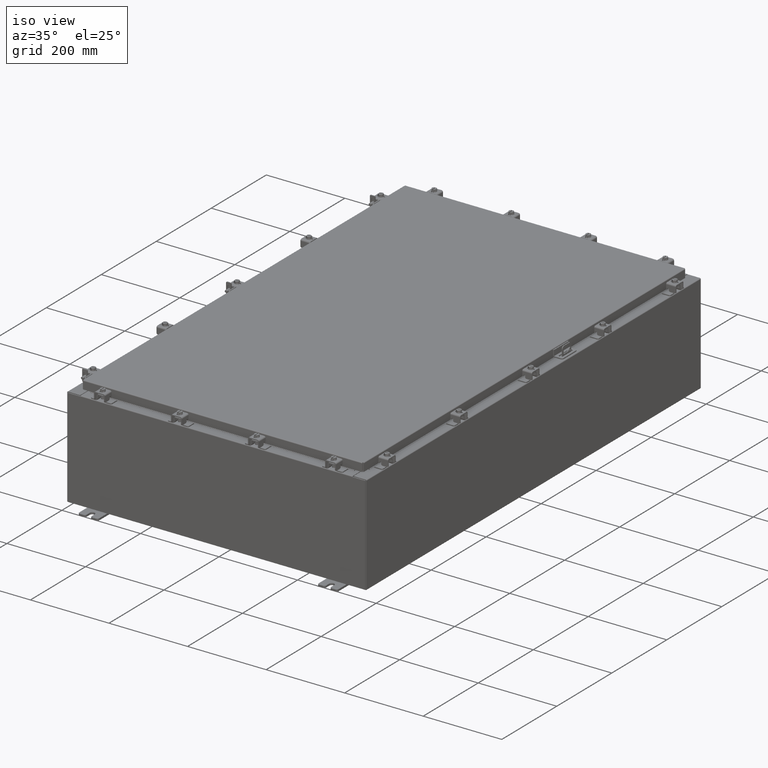
[diagram: clean part render]
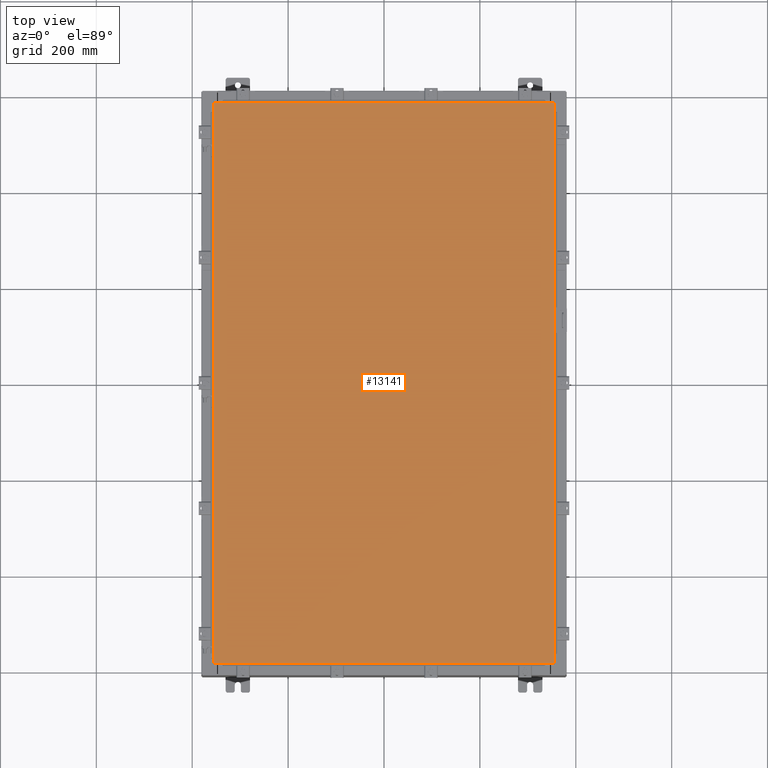
[diagram: tour spotlight — one face highlighted and labeled with its STEP entity id]
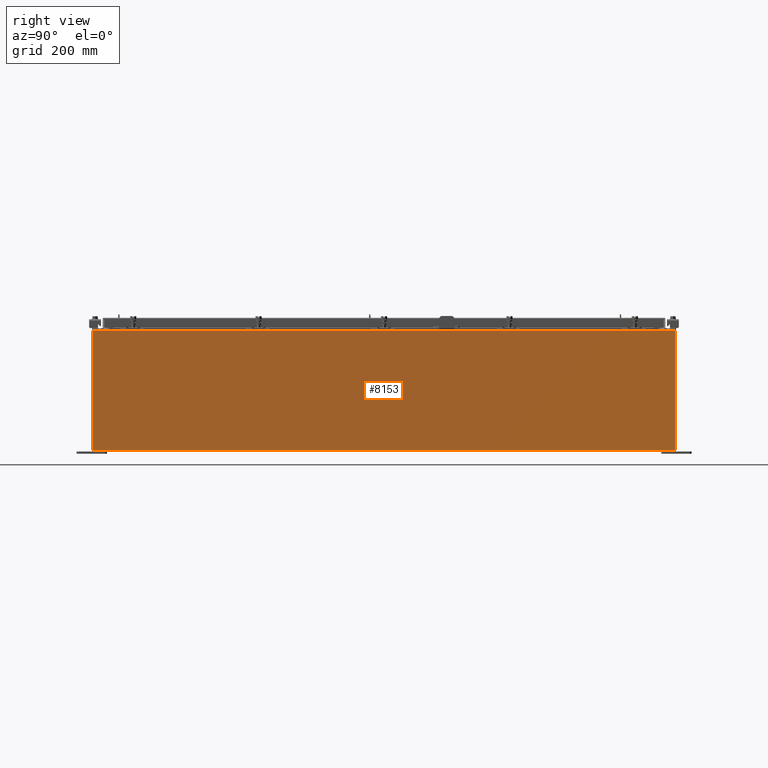
[diagram: tour spotlight — one face highlighted and labeled with its STEP entity id]
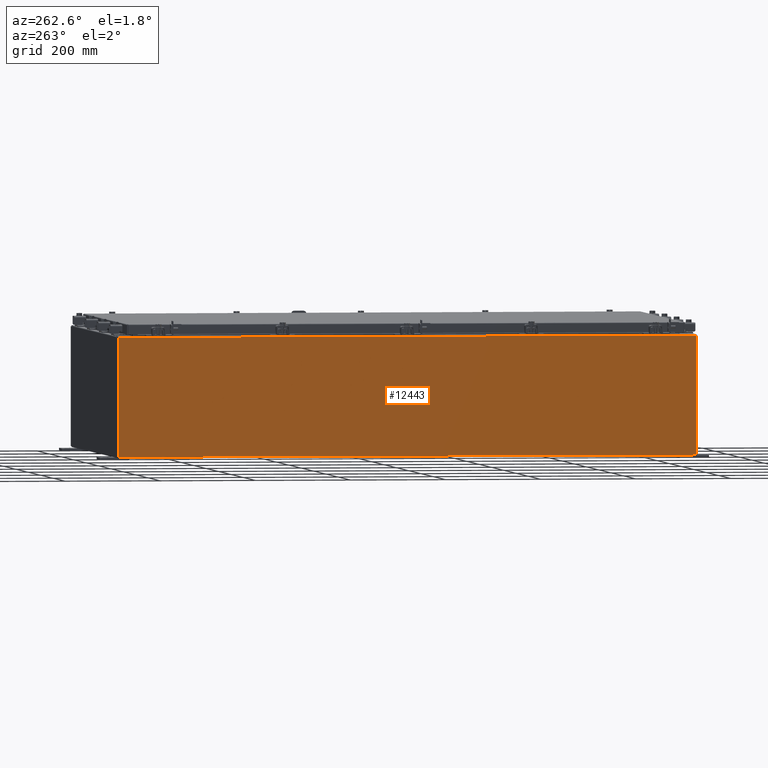
[diagram: tour spotlight — one face highlighted and labeled with its STEP entity id]
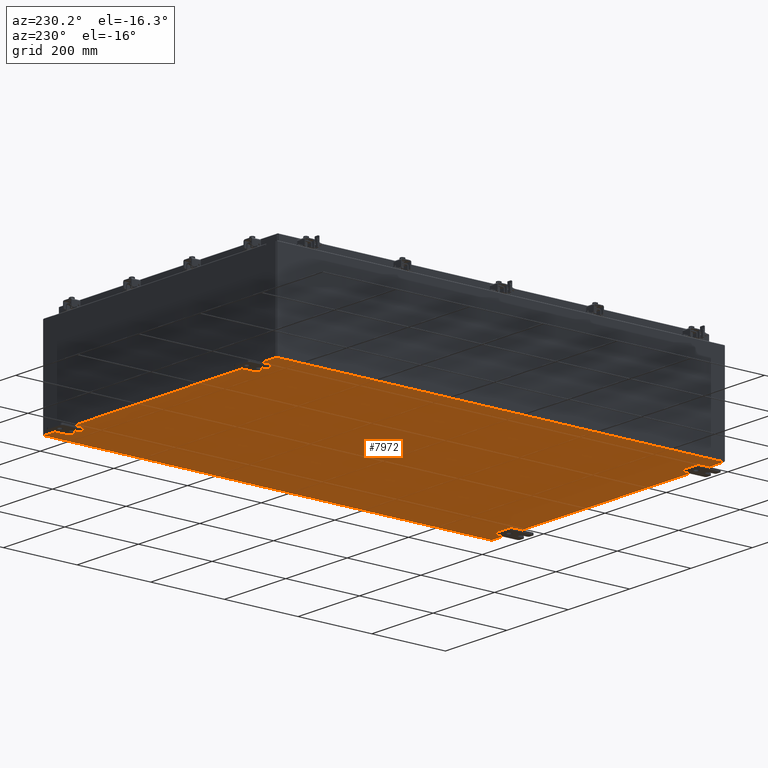
[diagram: tour spotlight — one face highlighted and labeled with its STEP entity id]
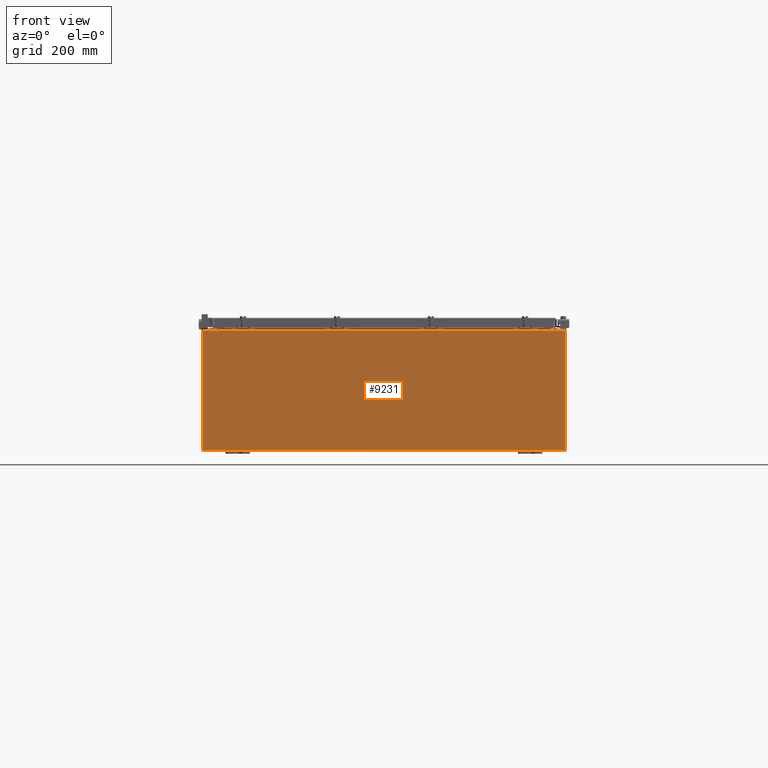
[diagram: tour spotlight — one face highlighted and labeled with its STEP entity id]
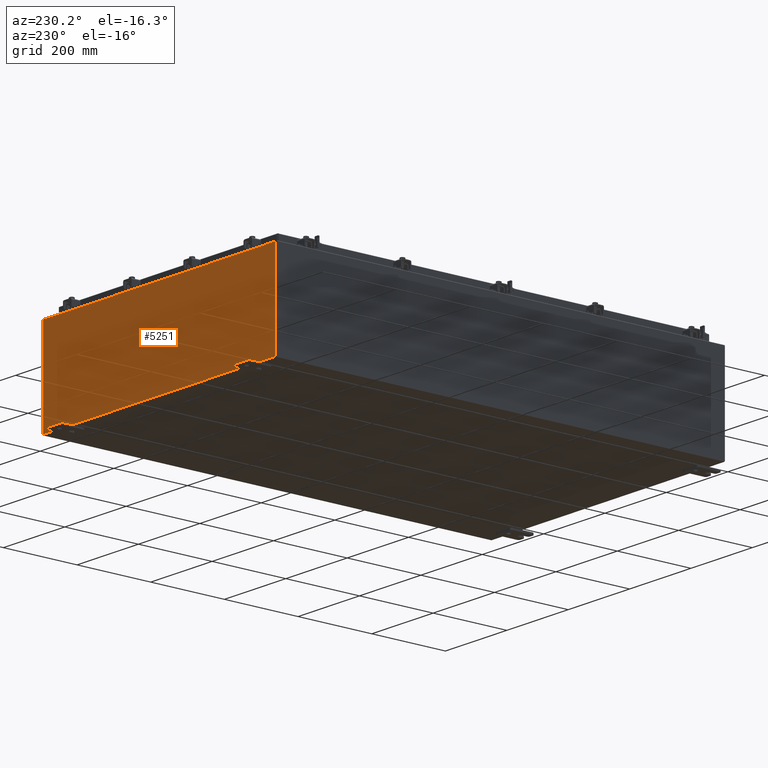
[diagram: tour spotlight — one face highlighted and labeled with its STEP entity id]
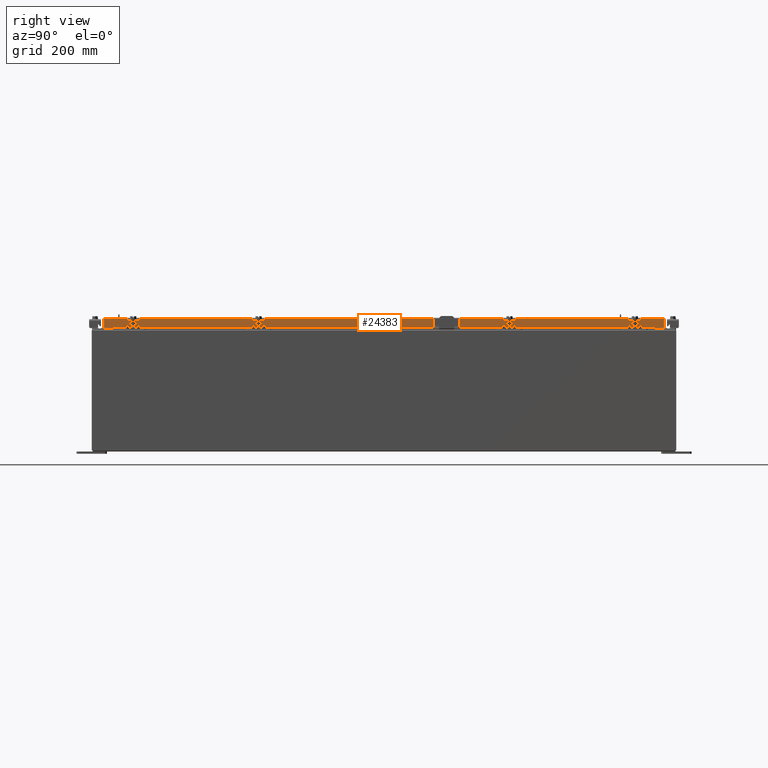
[diagram: tour spotlight — one face highlighted and labeled with its STEP entity id]
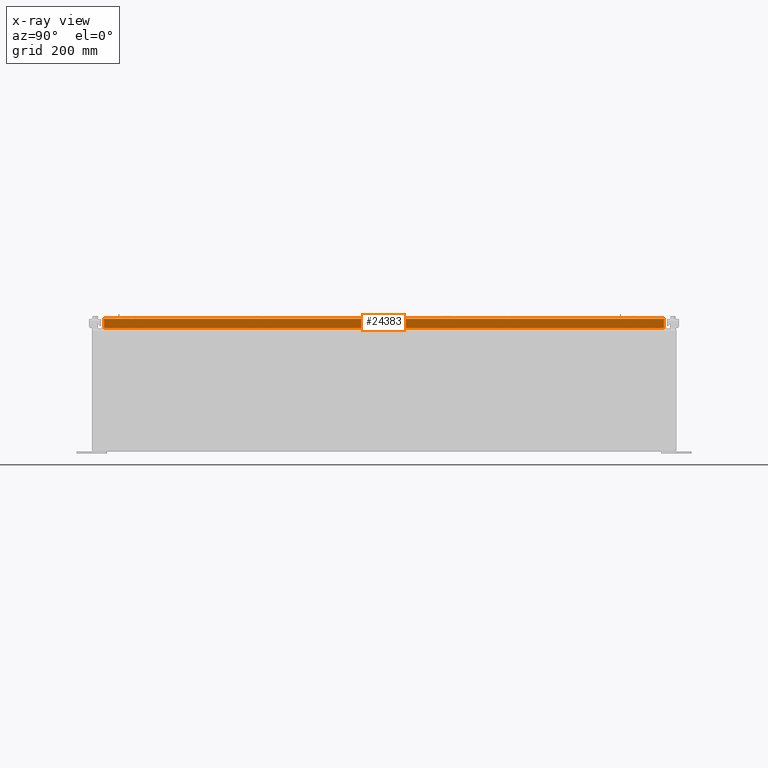
[diagram: x-ray of the same camera — body ghosted, this tour face saturated]
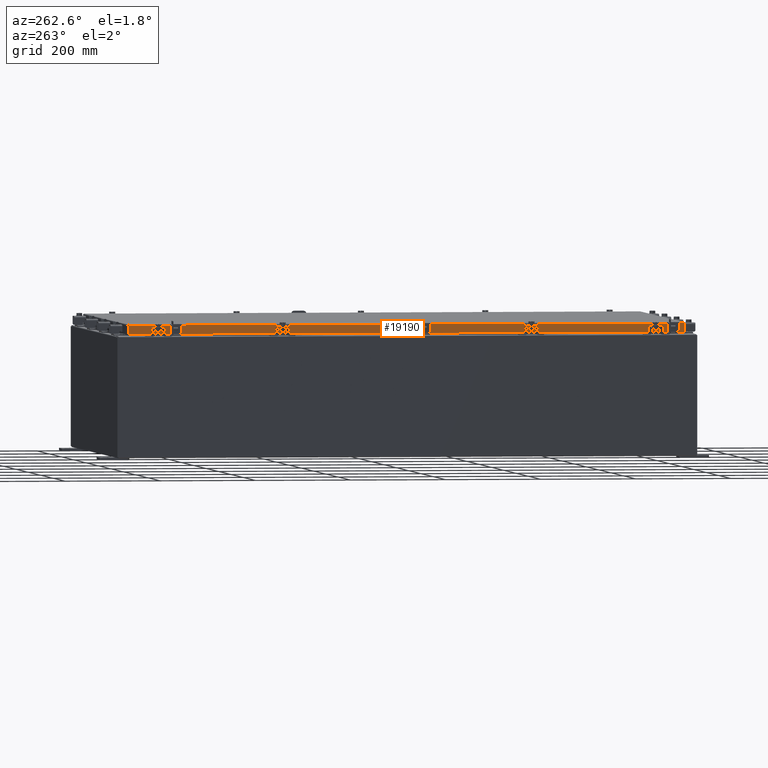
[diagram: tour spotlight — one face highlighted and labeled with its STEP entity id]
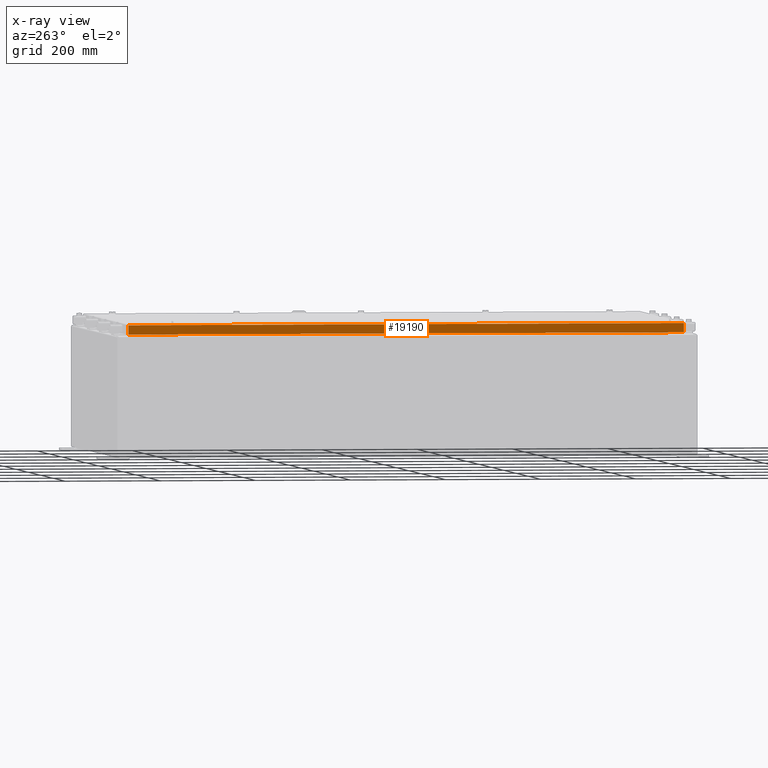
[diagram: x-ray of the same camera — body ghosted, this tour face saturated]
A machine part: a face-by-face anatomy tour. The part has 2878 B-rep faces; the first image is the clean iso view, then the 8 largest visible faces are spotlighted one at a time (largest first), each with its STEP entity span.

Face 1 — top view, entity #13141. In plain terms, the highlighted planar face has unit normal (0, 0, -1).
Definition (entity closure, byte-faithful):
#317 = VERTEX_POINT ( 'NONE', #12090 ) ;
#1396 = VERTEX_POINT ( 'NONE', #3973 ) ;
#1817 = CARTESIAN_POINT ( 'NONE',  ( -13.99029999999999800, 23.00629999999999600, -2.048885995248197400E-016 ) ) ;
#3973 = CARTESIAN_POINT ( 'NONE',  ( 13.99030000000000000, -23.00629999999999600, -1.297627796990525000E-015 ) ) ;
#4727 = EDGE_CURVE ( 'NONE', #22248, #1396, #22073, .T. ) ;
#5405 = DIRECTION ( 'NONE',  ( -1.000000000000000000, 0.0000000000000000000, -0.0000000000000000000 ) ) ;
#5730 = CARTESIAN_POINT ( 'NONE',  ( 13.99030000000000000, -23.00629999999999600, -1.297627796990525000E-015 ) ) ;
#6305 = DIRECTION ( 'NONE',  ( -1.000000000000000000, -0.0000000000000000000, -0.0000000000000000000 ) ) ;
#6599 = ORIENTED_EDGE ( 'NONE', *, *, #15215, .T. ) ;
#7044 = CARTESIAN_POINT ( 'NONE',  ( -13.99029999999999100, -23.00630000000000000, 1.997663845366992600E-015 ) ) ;
#8217 = VERTEX_POINT ( 'NONE', #17587 ) ;
#9403 = DIRECTION ( 'NONE',  ( 0.0000000000000000000, -1.000000000000000000, 0.0000000000000000000 ) ) ;
#11632 = FACE_OUTER_BOUND ( 'NONE', #18107, .T. ) ;
#12090 = CARTESIAN_POINT ( 'NONE',  ( 13.99029999999999800, 23.00630000000000000, 1.946441695485787500E-015 ) ) ;
#12712 = ORIENTED_EDGE ( 'NONE', *, *, #18709, .T. ) ;
#13033 = AXIS2_PLACEMENT_3D ( 'NONE', #18612, #16774, #5405 ) ;
#13141 = ADVANCED_FACE ( 'NONE', ( #11632 ), #14868, .F. ) ;
#13178 = LINE ( 'NONE', #5730, #23857 ) ;
#14868 = PLANE ( 'NONE',  #13033 ) ;
#15215 = EDGE_CURVE ( 'NONE', #317, #8217, #24341, .T. ) ;
#16366 = ORIENTED_EDGE ( 'NONE', *, *, #4727, .T. ) ;
#16774 = DIRECTION ( 'NONE',  ( 0.0000000000000000000, 0.0000000000000000000, -1.000000000000000000 ) ) ;
#17084 = DIRECTION ( 'NONE',  ( 0.0000000000000000000, 1.000000000000000000, 0.0000000000000000000 ) ) ;
#17587 = CARTESIAN_POINT ( 'NONE',  ( -13.99029999999999800, 23.00629999999999600, -2.048885995248197400E-016 ) ) ;
#18107 = EDGE_LOOP ( 'NONE', ( #16366, #21986, #6599, #12712 ) ) ;
#18612 = CARTESIAN_POINT ( 'NONE',  ( 0.0000000000000000000, 0.0000000000000000000, 0.0000000000000000000 ) ) ;
#18709 = EDGE_CURVE ( 'NONE', #8217, #22248, #19221, .T. ) ;
#18734 = VECTOR ( 'NONE', #6305, 39.37007874015748100 ) ;
#19221 = LINE ( 'NONE', #1817, #23645 ) ;
#20331 = DIRECTION ( 'NONE',  ( 1.000000000000000000, -0.0000000000000000000, -0.0000000000000000000 ) ) ;
#21976 = CARTESIAN_POINT ( 'NONE',  ( -13.99029999999999200, -23.00630000000000000, 2.006200870347193400E-015 ) ) ;
#21986 = ORIENTED_EDGE ( 'NONE', *, *, #24367, .T. ) ;
#22073 = LINE ( 'NONE', #7044, #22677 ) ;
#22248 = VERTEX_POINT ( 'NONE', #21976 ) ;
#22677 = VECTOR ( 'NONE', #20331, 39.37007874015748100 ) ;
#23408 = CARTESIAN_POINT ( 'NONE',  ( 13.99029999999999800, 23.00630000000000000, 1.946441695485787500E-015 ) ) ;
#23645 = VECTOR ( 'NONE', #9403, 39.37007874015748100 ) ;
#23857 = VECTOR ( 'NONE', #17084, 39.37007874015748100 ) ;
#24341 = LINE ( 'NONE', #23408, #18734 ) ;
#24367 = EDGE_CURVE ( 'NONE', #1396, #317, #13178, .T. ) ;

Face 2 — right view, entity #8153. In plain terms, the highlighted planar face has unit normal (-1, 0, 0).
Definition (entity closure, byte-faithful):
#723 = EDGE_LOOP ( 'NONE', ( #15910, #9032, #17073, #21621 ) ) ;
#1168 = VERTEX_POINT ( 'NONE', #21957 ) ;
#1200 = DIRECTION ( 'NONE',  ( 1.609096119163526300E-031, -1.000000000000000000, 4.567295697298285000E-017 ) ) ;
#1311 = VECTOR ( 'NONE', #16902, 39.37007874015748100 ) ;
#2201 = CARTESIAN_POINT ( 'NONE',  ( 15.00000000000003400, -23.92529999999998600, 9.837600000000001900 ) ) ;
#3956 = LINE ( 'NONE', #8378, #18503 ) ;
#4155 = CARTESIAN_POINT ( 'NONE',  ( 14.99999999999999800, 0.0000000000000000000, -5.310705656892488900E-014 ) ) ;
#4689 = EDGE_CURVE ( 'NONE', #16903, #1168, #8108, .T. ) ;
#4788 = CARTESIAN_POINT ( 'NONE',  ( 15.00000000000003400, 23.92529999999998600, 9.837599999999994800 ) ) ;
#5398 = VECTOR ( 'NONE', #14334, 39.37007874015748100 ) ;
#6062 = DIRECTION ( 'NONE',  ( 3.523082860860887800E-015, 0.0000000000000000000, 1.000000000000000000 ) ) ;
#6917 = VERTEX_POINT ( 'NONE', #2201 ) ;
#8108 = LINE ( 'NONE', #21990, #17611 ) ;
#8153 = ADVANCED_FACE ( 'NONE', ( #22818 ), #15532, .F. ) ;
#8378 = CARTESIAN_POINT ( 'NONE',  ( 14.99999999999999800, 23.92529999999999600, -5.310705656892488900E-014 ) ) ;
#8462 = DIRECTION ( 'NONE',  ( 3.523082860860888200E-015, 0.0000000000000000000, 1.000000000000000000 ) ) ;
#9032 = ORIENTED_EDGE ( 'NONE', *, *, #22224, .T. ) ;
#10427 = LINE ( 'NONE', #23706, #5398 ) ;
#11425 = LINE ( 'NONE', #15000, #1311 ) ;
#11553 = EDGE_CURVE ( 'NONE', #16903, #22213, #3956, .T. ) ;
#12265 = CARTESIAN_POINT ( 'NONE',  ( 14.99999999999999800, 23.92529999999998900, 0.01299999999999766100 ) ) ;
#14334 = DIRECTION ( 'NONE',  ( -3.523082860860888200E-015, 0.0000000000000000000, -1.000000000000000000 ) ) ;
#14722 = AXIS2_PLACEMENT_3D ( 'NONE', #4155, #17429, #6062 ) ;
#15000 = CARTESIAN_POINT ( 'NONE',  ( 15.00000000000003400, 23.92529999999999600, 9.837599999999994800 ) ) ;
#15532 = PLANE ( 'NONE',  #14722 ) ;
#15910 = ORIENTED_EDGE ( 'NONE', *, *, #19639, .T. ) ;
#16902 = DIRECTION ( 'NONE',  ( -0.0000000000000000000, -1.000000000000000000, -0.0000000000000000000 ) ) ;
#16903 = VERTEX_POINT ( 'NONE', #12265 ) ;
#17073 = ORIENTED_EDGE ( 'NONE', *, *, #4689, .F. ) ;
#17429 = DIRECTION ( 'NONE',  ( -1.000000000000000000, 0.0000000000000000000, 3.523082860860887800E-015 ) ) ;
#17611 = VECTOR ( 'NONE', #1200, 39.37007874015748100 ) ;
#18503 = VECTOR ( 'NONE', #8462, 39.37007874015748100 ) ;
#19639 = EDGE_CURVE ( 'NONE', #22213, #6917, #11425, .T. ) ;
#21621 = ORIENTED_EDGE ( 'NONE', *, *, #11553, .T. ) ;
#21957 = CARTESIAN_POINT ( 'NONE',  ( 14.99999999999999800, -23.92529999999998200, 0.01300000000000071400 ) ) ;
#21990 = CARTESIAN_POINT ( 'NONE',  ( 14.99999999999999800, -23.92529999999998600, 0.01299999999999984700 ) ) ;
#22213 = VERTEX_POINT ( 'NONE', #4788 ) ;
#22224 = EDGE_CURVE ( 'NONE', #6917, #1168, #10427, .T. ) ;
#22818 = FACE_OUTER_BOUND ( 'NONE', #723, .T. ) ;
#23706 = CARTESIAN_POINT ( 'NONE',  ( 14.99999999999999800, -23.92529999999998600, -5.310705656892488900E-014 ) ) ;

Face 3 — auxiliary view, entity #12443. In plain terms, the highlighted planar face has unit normal (1, 0, 0).
Definition (entity closure, byte-faithful):
#48 = VECTOR ( 'NONE', #2195, 39.37007874015748100 ) ;
#273 = LINE ( 'NONE', #1406, #5350 ) ;
#1406 = CARTESIAN_POINT ( 'NONE',  ( -15.00000000000000400, 23.92529999999999600, 0.01299999999999984700 ) ) ;
#1412 = CARTESIAN_POINT ( 'NONE',  ( -15.00000000000000400, -23.92529999999998900, -5.310705656892490100E-014 ) ) ;
#2147 = LINE ( 'NONE', #1412, #16110 ) ;
#2195 = DIRECTION ( 'NONE',  ( 0.0000000000000000000, 1.000000000000000000, 0.0000000000000000000 ) ) ;
#2291 = CARTESIAN_POINT ( 'NONE',  ( -15.00000000000000400, -23.92529999999998200, 0.01299999999999984700 ) ) ;
#2331 = CARTESIAN_POINT ( 'NONE',  ( -15.00000000000003700, 23.92529999999999600, 9.837599999999998300 ) ) ;
#2652 = CARTESIAN_POINT ( 'NONE',  ( -15.00000000000003700, -23.92529999999998200, 9.837599999999998300 ) ) ;
#2763 = VECTOR ( 'NONE', #8660, 39.37007874015748100 ) ;
#4092 = ORIENTED_EDGE ( 'NONE', *, *, #12014, .T. ) ;
#4377 = EDGE_CURVE ( 'NONE', #10965, #13579, #12867, .T. ) ;
#5126 = LINE ( 'NONE', #15343, #48 ) ;
#5350 = VECTOR ( 'NONE', #12786, 39.37007874015748100 ) ;
#5632 = CARTESIAN_POINT ( 'NONE',  ( -15.00000000000000400, 23.92529999999998900, 0.01299999999999984300 ) ) ;
#5940 = EDGE_CURVE ( 'NONE', #17431, #12875, #2147, .T. ) ;
#7254 = CARTESIAN_POINT ( 'NONE',  ( -15.00000000000000400, 0.0000000000000000000, -5.310705656892490100E-014 ) ) ;
#8660 = DIRECTION ( 'NONE',  ( 3.523082860860888200E-015, 0.0000000000000000000, -1.000000000000000000 ) ) ;
#8999 = DIRECTION ( 'NONE',  ( -3.523082860860888200E-015, 0.0000000000000000000, 1.000000000000000000 ) ) ;
#9184 = PLANE ( 'NONE',  #11104 ) ;
#10124 = ORIENTED_EDGE ( 'NONE', *, *, #5940, .T. ) ;
#10965 = VERTEX_POINT ( 'NONE', #2331 ) ;
#11071 = DIRECTION ( 'NONE',  ( 3.523082860860887800E-015, 0.0000000000000000000, -1.000000000000000000 ) ) ;
#11104 = AXIS2_PLACEMENT_3D ( 'NONE', #7254, #16635, #11071 ) ;
#12014 = EDGE_CURVE ( 'NONE', #12875, #10965, #5126, .T. ) ;
#12443 = ADVANCED_FACE ( 'NONE', ( #17566 ), #9184, .F. ) ;
#12786 = DIRECTION ( 'NONE',  ( -0.0000000000000000000, 1.000000000000000000, -0.0000000000000000000 ) ) ;
#12867 = LINE ( 'NONE', #14389, #2763 ) ;
#12873 = ORIENTED_EDGE ( 'NONE', *, *, #14803, .F. ) ;
#12875 = VERTEX_POINT ( 'NONE', #2652 ) ;
#13579 = VERTEX_POINT ( 'NONE', #5632 ) ;
#14389 = CARTESIAN_POINT ( 'NONE',  ( -15.00000000000000400, 23.92529999999999600, -5.310705656892490100E-014 ) ) ;
#14803 = EDGE_CURVE ( 'NONE', #17431, #13579, #273, .T. ) ;
#15343 = CARTESIAN_POINT ( 'NONE',  ( -15.00000000000003700, -23.92529999999998600, 9.837599999999998300 ) ) ;
#16110 = VECTOR ( 'NONE', #8999, 39.37007874015748100 ) ;
#16635 = DIRECTION ( 'NONE',  ( 1.000000000000000000, 0.0000000000000000000, 3.523082860860887800E-015 ) ) ;
#17431 = VERTEX_POINT ( 'NONE', #2291 ) ;
#17566 = FACE_OUTER_BOUND ( 'NONE', #19592, .T. ) ;
#19546 = ORIENTED_EDGE ( 'NONE', *, *, #4377, .T. ) ;
#19592 = EDGE_LOOP ( 'NONE', ( #4092, #19546, #12873, #10124 ) ) ;

Face 4 — auxiliary view, entity #7972. In plain terms, the highlighted planar face has unit normal (0, 0, -1).
Definition (entity closure, byte-faithful):
#672 = DIRECTION ( 'NONE',  ( -0.0000000000000000000, 1.000000000000000000, -0.0000000000000000000 ) ) ;
#985 = EDGE_CURVE ( 'NONE', #18363, #20114, #22527, .T. ) ;
#1734 = DIRECTION ( 'NONE',  ( -1.000000000000000000, 0.0000000000000000000, -0.0000000000000000000 ) ) ;
#2835 = CARTESIAN_POINT ( 'NONE',  ( -14.91230000000000200, -23.92529999999998200, -0.07469999999999994700 ) ) ;
#3075 = LINE ( 'NONE', #17392, #12567 ) ;
#4226 = ORIENTED_EDGE ( 'NONE', *, *, #985, .T. ) ;
#4527 = CARTESIAN_POINT ( 'NONE',  ( -14.91230000000000200, -23.92529999999998900, -0.07469999999999994700 ) ) ;
#6023 = DIRECTION ( 'NONE',  ( 1.000000000000000000, 1.456985596620940400E-016, 0.0000000000000000000 ) ) ;
#6198 = FACE_OUTER_BOUND ( 'NONE', #17132, .T. ) ;
#7077 = VECTOR ( 'NONE', #9942, 39.37007874015748100 ) ;
#7972 = ADVANCED_FACE ( 'NONE', ( #6198 ), #24476, .T. ) ;
#8196 = ORIENTED_EDGE ( 'NONE', *, *, #20662, .F. ) ;
#8283 = CARTESIAN_POINT ( 'NONE',  ( -14.91230000000000200, 23.92529999999998900, -0.07470000000000000300 ) ) ;
#8604 = VERTEX_POINT ( 'NONE', #9039 ) ;
#8882 = LINE ( 'NONE', #11838, #7077 ) ;
#9039 = CARTESIAN_POINT ( 'NONE',  ( 14.91229999999999800, -23.92529999999999600, -0.07470000000000000300 ) ) ;
#9942 = DIRECTION ( 'NONE',  ( -0.0000000000000000000, -1.000000000000000000, 8.208677865577646300E-017 ) ) ;
#11214 = CARTESIAN_POINT ( 'NONE',  ( 0.0000000000000000000, 0.0000000000000000000, -0.07470000000000000300 ) ) ;
#11269 = CARTESIAN_POINT ( 'NONE',  ( -15.00000000000000400, 23.92530000000000400, -0.07470000000000000300 ) ) ;
#11660 = VERTEX_POINT ( 'NONE', #22072 ) ;
#11838 = CARTESIAN_POINT ( 'NONE',  ( 14.91229999999999800, 23.92530000000000000, -0.07470000000000300000 ) ) ;
#11840 = EDGE_CURVE ( 'NONE', #11660, #20114, #23249, .T. ) ;
#12402 = VECTOR ( 'NONE', #672, 39.37007874015748100 ) ;
#12567 = VECTOR ( 'NONE', #6023, 39.37007874015748100 ) ;
#13108 = DIRECTION ( 'NONE',  ( 0.0000000000000000000, 0.0000000000000000000, -1.000000000000000000 ) ) ;
#13132 = VECTOR ( 'NONE', #22646, 39.37007874015748100 ) ;
#15611 = ORIENTED_EDGE ( 'NONE', *, *, #11840, .F. ) ;
#17132 = EDGE_LOOP ( 'NONE', ( #8196, #4226, #15611, #22679 ) ) ;
#17392 = CARTESIAN_POINT ( 'NONE',  ( -15.00000000000000400, -23.92530000000000000, -0.07470000000000000300 ) ) ;
#17459 = EDGE_CURVE ( 'NONE', #11660, #8604, #8882, .T. ) ;
#18363 = VERTEX_POINT ( 'NONE', #2835 ) ;
#20114 = VERTEX_POINT ( 'NONE', #8283 ) ;
#20662 = EDGE_CURVE ( 'NONE', #18363, #8604, #3075, .T. ) ;
#22072 = CARTESIAN_POINT ( 'NONE',  ( 14.91229999999999800, 23.92529999999998900, -0.07470000000000300000 ) ) ;
#22527 = LINE ( 'NONE', #4527, #12402 ) ;
#22646 = DIRECTION ( 'NONE',  ( -1.000000000000000000, -0.0000000000000000000, -0.0000000000000000000 ) ) ;
#22679 = ORIENTED_EDGE ( 'NONE', *, *, #17459, .T. ) ;
#23249 = LINE ( 'NONE', #11269, #13132 ) ;
#24074 = AXIS2_PLACEMENT_3D ( 'NONE', #11214, #13108, #1734 ) ;
#24476 = PLANE ( 'NONE',  #24074 ) ;

Face 5 — front view, entity #9231. In plain terms, the highlighted planar face has unit normal (-0, 1, -0).
Definition (entity closure, byte-faithful):
#666 = VERTEX_POINT ( 'NONE', #24533 ) ;
#963 = LINE ( 'NONE', #5372, #6056 ) ;
#1011 = ORIENTED_EDGE ( 'NONE', *, *, #15891, .T. ) ;
#1357 = EDGE_CURVE ( 'NONE', #6161, #6591, #21623, .T. ) ;
#1683 = VERTEX_POINT ( 'NONE', #2943 ) ;
#1849 = ORIENTED_EDGE ( 'NONE', *, *, #4085, .T. ) ;
#2004 = VECTOR ( 'NONE', #7726, 39.37007874015748100 ) ;
#2048 = CARTESIAN_POINT ( 'NONE',  ( -13.67455000000000000, 0.0000000000000000000, 4.925300000000000000 ) ) ;
#2081 = CIRCLE ( 'NONE', #17974, 0.01867499999999949400 ) ;
#2113 = ORIENTED_EDGE ( 'NONE', *, *, #4338, .T. ) ;
#2378 = CARTESIAN_POINT ( 'NONE',  ( 13.67455000000000000, 0.0000000000000000000, 4.925300000000000000 ) ) ;
#2434 = ORIENTED_EDGE ( 'NONE', *, *, #7312, .T. ) ;
#2440 = CARTESIAN_POINT ( 'NONE',  ( -13.63720000000000400, -7.171100983368691200E-016, 4.912300000000000100 ) ) ;
#2755 = CARTESIAN_POINT ( 'NONE',  ( -14.92530000000000200, 0.0000000000000000000, 4.925300000000000000 ) ) ;
#2943 = CARTESIAN_POINT ( 'NONE',  ( 14.92529999999999800, 0.0000000000000000000, -4.925300000000000000 ) ) ;
#2970 = CARTESIAN_POINT ( 'NONE',  ( -14.92530000000000200, 0.0000000000000000000, 4.925300000000000000 ) ) ;
#3210 = CARTESIAN_POINT ( 'NONE',  ( -13.65587500000000000, 0.0000000000000000000, 4.874950000000000100 ) ) ;
#4027 = DIRECTION ( 'NONE',  ( -1.000000000000000000, -0.0000000000000000000, -0.0000000000000000000 ) ) ;
#4085 = EDGE_CURVE ( 'NONE', #1683, #12621, #23862, .T. ) ;
#4112 = CARTESIAN_POINT ( 'NONE',  ( -14.92530000000000200, 0.0000000000000000000, -4.925300000000000000 ) ) ;
#4252 = ORIENTED_EDGE ( 'NONE', *, *, #9467, .F. ) ;
#4261 = LINE ( 'NONE', #10524, #24432 ) ;
#4338 = EDGE_CURVE ( 'NONE', #5016, #5734, #24147, .T. ) ;
#4615 = EDGE_CURVE ( 'NONE', #18190, #19947, #4261, .T. ) ;
#4640 = VERTEX_POINT ( 'NONE', #2970 ) ;
#5016 = VERTEX_POINT ( 'NONE', #2378 ) ;
#5122 = DIRECTION ( 'NONE',  ( 0.0000000000000000000, 0.0000000000000000000, -1.000000000000000000 ) ) ;
#5272 = DIRECTION ( 'NONE',  ( -0.0000000000000000000, 1.000000000000000000, -0.0000000000000000000 ) ) ;
#5365 = CARTESIAN_POINT ( 'NONE',  ( 0.0000000000000000000, 0.0000000000000000000, 0.0000000000000000000 ) ) ;
#5372 = CARTESIAN_POINT ( 'NONE',  ( -14.92530000000000200, 0.0000000000000000000, 4.925300000000000000 ) ) ;
#5403 = EDGE_CURVE ( 'NONE', #12621, #4640, #963, .T. ) ;
#5734 = VERTEX_POINT ( 'NONE', #23364 ) ;
#5956 = CARTESIAN_POINT ( 'NONE',  ( -13.67455000000000000, 0.0000000000000000000, 4.874950000000000100 ) ) ;
#6056 = VECTOR ( 'NONE', #7267, 39.37007874015748100 ) ;
#6161 = VERTEX_POINT ( 'NONE', #17356 ) ;
#6223 = VECTOR ( 'NONE', #15743, 39.37007874015748100 ) ;
#6591 = VERTEX_POINT ( 'NONE', #22319 ) ;
#7261 = DIRECTION ( 'NONE',  ( 0.0000000000000000000, -1.000000000000000000, 0.0000000000000000000 ) ) ;
#7267 = DIRECTION ( 'NONE',  ( -0.0000000000000000000, -0.0000000000000000000, 1.000000000000000000 ) ) ;
#7312 = EDGE_CURVE ( 'NONE', #4640, #24435, #14235, .T. ) ;
#7726 = DIRECTION ( 'NONE',  ( 0.0000000000000000000, 0.0000000000000000000, -1.000000000000000000 ) ) ;
#7965 = CIRCLE ( 'NONE', #11035, 0.01867499999999949400 ) ;
#8131 = VECTOR ( 'NONE', #4027, 39.37007874015748100 ) ;
#8919 = VERTEX_POINT ( 'NONE', #5956 ) ;
#8935 = DIRECTION ( 'NONE',  ( 1.000000000000000000, 0.0000000000000000000, 0.0000000000000000000 ) ) ;
#9231 = ADVANCED_FACE ( 'NONE', ( #22172 ), #18650, .F. ) ;
#9467 = EDGE_CURVE ( 'NONE', #8919, #24435, #12942, .T. ) ;
#9545 = CARTESIAN_POINT ( 'NONE',  ( 13.63719999999999800, 0.0000000000000000000, 4.912300000000000100 ) ) ;
#9921 = EDGE_CURVE ( 'NONE', #5734, #1683, #19186, .T. ) ;
#10040 = ORIENTED_EDGE ( 'NONE', *, *, #4615, .F. ) ;
#10524 = CARTESIAN_POINT ( 'NONE',  ( 13.63719999999999800, 0.0000000000000000000, 0.0000000000000000000 ) ) ;
#11035 = AXIS2_PLACEMENT_3D ( 'NONE', #3210, #16478, #5122 ) ;
#11545 = CARTESIAN_POINT ( 'NONE',  ( 13.67454999999978500, -0.0000000000000000000, -5.935537951421795000E-013 ) ) ;
#12167 = ORIENTED_EDGE ( 'NONE', *, *, #9921, .T. ) ;
#12621 = VERTEX_POINT ( 'NONE', #19057 ) ;
#12942 = LINE ( 'NONE', #21129, #17406 ) ;
#13464 = DIRECTION ( 'NONE',  ( -4.340572780400004900E-014, 0.0000000000000000000, -1.000000000000000000 ) ) ;
#13481 = CARTESIAN_POINT ( 'NONE',  ( -13.63720000000000000, -0.0000000000000000000, 0.0000000000000000000 ) ) ;
#13522 = VECTOR ( 'NONE', #22340, 39.37007874015748100 ) ;
#13903 = CARTESIAN_POINT ( 'NONE',  ( 13.63719999999999800, 0.0000000000000000000, 4.874950000000000100 ) ) ;
#14180 = EDGE_CURVE ( 'NONE', #666, #18190, #2081, .T. ) ;
#14235 = LINE ( 'NONE', #22211, #23150 ) ;
#15400 = DIRECTION ( 'NONE',  ( 0.0000000000000000000, 0.0000000000000000000, 1.000000000000000000 ) ) ;
#15661 = ORIENTED_EDGE ( 'NONE', *, *, #14180, .F. ) ;
#15743 = DIRECTION ( 'NONE',  ( 1.000000000000000000, 0.0000000000000000000, 0.0000000000000000000 ) ) ;
#15891 = EDGE_CURVE ( 'NONE', #6161, #19947, #16307, .T. ) ;
#16307 = LINE ( 'NONE', #2440, #6223 ) ;
#16478 = DIRECTION ( 'NONE',  ( -0.0000000000000000000, 1.000000000000000000, -0.0000000000000000000 ) ) ;
#16630 = CARTESIAN_POINT ( 'NONE',  ( 13.65587499999999800, 0.0000000000000000000, 4.874950000000000100 ) ) ;
#17356 = CARTESIAN_POINT ( 'NONE',  ( -13.63720000000000000, -7.171100983368691200E-016, 4.912300000000000100 ) ) ;
#17406 = VECTOR ( 'NONE', #15400, 39.37007874015748100 ) ;
#17637 = ORIENTED_EDGE ( 'NONE', *, *, #1357, .F. ) ;
#17734 = EDGE_CURVE ( 'NONE', #6591, #8919, #7965, .T. ) ;
#17974 = AXIS2_PLACEMENT_3D ( 'NONE', #16630, #5272, #18549 ) ;
#18080 = ORIENTED_EDGE ( 'NONE', *, *, #5403, .T. ) ;
#18190 = VERTEX_POINT ( 'NONE', #13903 ) ;
#18549 = DIRECTION ( 'NONE',  ( 0.0000000000000000000, 0.0000000000000000000, -1.000000000000000000 ) ) ;
#18650 = PLANE ( 'NONE',  #22207 ) ;
#19057 = CARTESIAN_POINT ( 'NONE',  ( -14.92530000000000200, 0.0000000000000000000, -4.925300000000000000 ) ) ;
#19186 = LINE ( 'NONE', #20442, #13522 ) ;
#19871 = DIRECTION ( 'NONE',  ( 1.000000000000000000, 0.0000000000000000000, 0.0000000000000000000 ) ) ;
#19947 = VERTEX_POINT ( 'NONE', #9545 ) ;
#20442 = CARTESIAN_POINT ( 'NONE',  ( 14.92529999999999800, 0.0000000000000000000, 4.925300000000000000 ) ) ;
#20545 = DIRECTION ( 'NONE',  ( 0.0000000000000000000, -0.0000000000000000000, -1.000000000000000000 ) ) ;
#20644 = LINE ( 'NONE', #11545, #24483 ) ;
#21129 = CARTESIAN_POINT ( 'NONE',  ( -13.67455000000000000, -0.0000000000000000000, 0.0000000000000000000 ) ) ;
#21623 = LINE ( 'NONE', #13481, #2004 ) ;
#21860 = EDGE_LOOP ( 'NONE', ( #4252, #23915, #17637, #1011, #10040, #15661, #24470, #2113, #12167, #1849, #18080, #2434 ) ) ;
#21909 = DIRECTION ( 'NONE',  ( 0.0000000000000000000, 0.0000000000000000000, 1.000000000000000000 ) ) ;
#22172 = FACE_OUTER_BOUND ( 'NONE', #21860, .T. ) ;
#22207 = AXIS2_PLACEMENT_3D ( 'NONE', #5365, #7261, #20545 ) ;
#22211 = CARTESIAN_POINT ( 'NONE',  ( -14.92530000000000200, 0.0000000000000000000, 4.925300000000000000 ) ) ;
#22319 = CARTESIAN_POINT ( 'NONE',  ( -13.63720000000000000, -0.0000000000000000000, 4.874950000000000100 ) ) ;
#22340 = DIRECTION ( 'NONE',  ( 0.0000000000000000000, 0.0000000000000000000, -1.000000000000000000 ) ) ;
#23150 = VECTOR ( 'NONE', #8935, 39.37007874015748100 ) ;
#23364 = CARTESIAN_POINT ( 'NONE',  ( 14.92529999999999800, 0.0000000000000000000, 4.925300000000000000 ) ) ;
#23568 = VECTOR ( 'NONE', #19871, 39.37007874015748100 ) ;
#23725 = EDGE_CURVE ( 'NONE', #5016, #666, #20644, .T. ) ;
#23862 = LINE ( 'NONE', #4112, #8131 ) ;
#23915 = ORIENTED_EDGE ( 'NONE', *, *, #17734, .F. ) ;
#24147 = LINE ( 'NONE', #2755, #23568 ) ;
#24432 = VECTOR ( 'NONE', #21909, 39.37007874015748100 ) ;
#24435 = VERTEX_POINT ( 'NONE', #2048 ) ;
#24470 = ORIENTED_EDGE ( 'NONE', *, *, #23725, .F. ) ;
#24483 = VECTOR ( 'NONE', #13464, 39.37007874015748100 ) ;
#24533 = CARTESIAN_POINT ( 'NONE',  ( 13.67454999999999800, 0.0000000000000000000, 4.874950000000000100 ) ) ;

Face 6 — auxiliary view, entity #5251. In plain terms, the highlighted planar face has unit normal (0, -1, 0).
Definition (entity closure, byte-faithful):
#460 = LINE ( 'NONE', #17597, #11177 ) ;
#461 = VERTEX_POINT ( 'NONE', #23786 ) ;
#623 = CARTESIAN_POINT ( 'NONE',  ( -13.67455000000000000, -0.0000000000000000000, 0.0000000000000000000 ) ) ;
#631 = LINE ( 'NONE', #19518, #10154 ) ;
#739 = CARTESIAN_POINT ( 'NONE',  ( 13.63719999999999800, 0.0000000000000000000, 0.0000000000000000000 ) ) ;
#786 = LINE ( 'NONE', #623, #5297 ) ;
#1989 = EDGE_CURVE ( 'NONE', #15549, #19942, #6440, .T. ) ;
#2100 = VECTOR ( 'NONE', #6278, 39.37007874015748100 ) ;
#2276 = EDGE_CURVE ( 'NONE', #12108, #17337, #5557, .T. ) ;
#2357 = VERTEX_POINT ( 'NONE', #4753 ) ;
#2445 = VECTOR ( 'NONE', #20698, 39.37007874015748100 ) ;
#2512 = VECTOR ( 'NONE', #14750, 39.37007874015748100 ) ;
#2547 = DIRECTION ( 'NONE',  ( 0.0000000000000000000, 0.0000000000000000000, 1.000000000000000000 ) ) ;
#2818 = CARTESIAN_POINT ( 'NONE',  ( -13.63720000000000000, -0.0000000000000000000, 4.874950000000000100 ) ) ;
#3029 = CARTESIAN_POINT ( 'NONE',  ( 0.0000000000000000000, 0.0000000000000000000, 0.0000000000000000000 ) ) ;
#3067 = ORIENTED_EDGE ( 'NONE', *, *, #2276, .F. ) ;
#3126 = LINE ( 'NONE', #3365, #2512 ) ;
#3365 = CARTESIAN_POINT ( 'NONE',  ( -14.92530000000000200, 0.0000000000000000000, -4.925300000000000000 ) ) ;
#3429 = ORIENTED_EDGE ( 'NONE', *, *, #7015, .T. ) ;
#4265 = VERTEX_POINT ( 'NONE', #15966 ) ;
#4753 = CARTESIAN_POINT ( 'NONE',  ( 13.67454999999999800, 0.0000000000000000000, 4.874950000000000100 ) ) ;
#4908 = DIRECTION ( 'NONE',  ( -0.0000000000000000000, 1.000000000000000000, -0.0000000000000000000 ) ) ;
#4919 = EDGE_CURVE ( 'NONE', #19942, #16096, #23867, .T. ) ;
#4963 = DIRECTION ( 'NONE',  ( 0.0000000000000000000, -0.0000000000000000000, -1.000000000000000000 ) ) ;
#5251 = ADVANCED_FACE ( 'NONE', ( #8431 ), #10589, .F. ) ;
#5297 = VECTOR ( 'NONE', #2547, 39.37007874015748100 ) ;
#5347 = ORIENTED_EDGE ( 'NONE', *, *, #18889, .F. ) ;
#5557 = LINE ( 'NONE', #739, #20696 ) ;
#6015 = CIRCLE ( 'NONE', #13796, 0.01867499999999949400 ) ;
#6262 = EDGE_CURVE ( 'NONE', #461, #14004, #631, .T. ) ;
#6278 = DIRECTION ( 'NONE',  ( -0.0000000000000000000, -0.0000000000000000000, 1.000000000000000000 ) ) ;
#6440 = LINE ( 'NONE', #7595, #15946 ) ;
#6669 = AXIS2_PLACEMENT_3D ( 'NONE', #7225, #20517, #9158 ) ;
#6760 = CARTESIAN_POINT ( 'NONE',  ( 14.92529999999999800, 0.0000000000000000000, -4.925300000000000000 ) ) ;
#6766 = ORIENTED_EDGE ( 'NONE', *, *, #4919, .T. ) ;
#6818 = CARTESIAN_POINT ( 'NONE',  ( -13.63720000000000000, -0.0000000000000000000, 0.0000000000000000000 ) ) ;
#7005 = CARTESIAN_POINT ( 'NONE',  ( -13.67455000000000000, 0.0000000000000000000, 4.874950000000000100 ) ) ;
#7015 = EDGE_CURVE ( 'NONE', #15091, #461, #7764, .T. ) ;
#7225 = CARTESIAN_POINT ( 'NONE',  ( 13.65587499999999800, 0.0000000000000000000, 4.874950000000000100 ) ) ;
#7595 = CARTESIAN_POINT ( 'NONE',  ( -14.92530000000000200, 0.0000000000000000000, 4.925300000000000000 ) ) ;
#7678 = AXIS2_PLACEMENT_3D ( 'NONE', #3029, #16319, #4963 ) ;
#7764 = LINE ( 'NONE', #8185, #2100 ) ;
#7824 = EDGE_CURVE ( 'NONE', #4265, #11103, #13017, .T. ) ;
#8185 = CARTESIAN_POINT ( 'NONE',  ( -14.92530000000000200, 0.0000000000000000000, 4.925300000000000000 ) ) ;
#8197 = CARTESIAN_POINT ( 'NONE',  ( 14.92529999999999800, 0.0000000000000000000, 4.925300000000000000 ) ) ;
#8257 = EDGE_CURVE ( 'NONE', #14122, #14004, #786, .T. ) ;
#8431 = FACE_OUTER_BOUND ( 'NONE', #16129, .T. ) ;
#8673 = ORIENTED_EDGE ( 'NONE', *, *, #19570, .T. ) ;
#9158 = DIRECTION ( 'NONE',  ( 0.0000000000000000000, 0.0000000000000000000, -1.000000000000000000 ) ) ;
#9407 = CARTESIAN_POINT ( 'NONE',  ( -13.63720000000000400, -7.171100983368691200E-016, 4.912300000000000100 ) ) ;
#9720 = ORIENTED_EDGE ( 'NONE', *, *, #1989, .T. ) ;
#9784 = CARTESIAN_POINT ( 'NONE',  ( 14.92529999999999800, 0.0000000000000000000, 4.925300000000000000 ) ) ;
#9932 = ORIENTED_EDGE ( 'NONE', *, *, #21645, .F. ) ;
#10154 = VECTOR ( 'NONE', #17680, 39.37007874015748100 ) ;
#10589 = PLANE ( 'NONE',  #7678 ) ;
#11103 = VERTEX_POINT ( 'NONE', #2818 ) ;
#11177 = VECTOR ( 'NONE', #23336, 39.37007874015748100 ) ;
#12108 = VERTEX_POINT ( 'NONE', #15825 ) ;
#13017 = LINE ( 'NONE', #6818, #18068 ) ;
#13118 = EDGE_CURVE ( 'NONE', #2357, #12108, #21746, .T. ) ;
#13597 = DIRECTION ( 'NONE',  ( 0.0000000000000000000, 0.0000000000000000000, -1.000000000000000000 ) ) ;
#13796 = AXIS2_PLACEMENT_3D ( 'NONE', #16262, #4908, #18173 ) ;
#14004 = VERTEX_POINT ( 'NONE', #23760 ) ;
#14007 = ORIENTED_EDGE ( 'NONE', *, *, #6262, .T. ) ;
#14122 = VERTEX_POINT ( 'NONE', #7005 ) ;
#14750 = DIRECTION ( 'NONE',  ( -1.000000000000000000, -0.0000000000000000000, -0.0000000000000000000 ) ) ;
#14778 = ORIENTED_EDGE ( 'NONE', *, *, #21214, .T. ) ;
#14878 = ORIENTED_EDGE ( 'NONE', *, *, #13118, .F. ) ;
#15091 = VERTEX_POINT ( 'NONE', #19276 ) ;
#15354 = CARTESIAN_POINT ( 'NONE',  ( 13.63719999999999800, 0.0000000000000000000, 4.912300000000000100 ) ) ;
#15549 = VERTEX_POINT ( 'NONE', #22397 ) ;
#15825 = CARTESIAN_POINT ( 'NONE',  ( 13.63719999999999800, 0.0000000000000000000, 4.874950000000000100 ) ) ;
#15946 = VECTOR ( 'NONE', #20885, 39.37007874015748100 ) ;
#15966 = CARTESIAN_POINT ( 'NONE',  ( -13.63720000000000000, -7.171100983368691200E-016, 4.912300000000000100 ) ) ;
#16096 = VERTEX_POINT ( 'NONE', #6760 ) ;
#16129 = EDGE_LOOP ( 'NONE', ( #20296, #9932, #19530, #14778, #3067, #14878, #5347, #9720, #6766, #8673, #3429, #14007 ) ) ;
#16262 = CARTESIAN_POINT ( 'NONE',  ( -13.65587500000000000, 0.0000000000000000000, 4.874950000000000100 ) ) ;
#16319 = DIRECTION ( 'NONE',  ( 0.0000000000000000000, -1.000000000000000000, 0.0000000000000000000 ) ) ;
#17337 = VERTEX_POINT ( 'NONE', #15354 ) ;
#17597 = CARTESIAN_POINT ( 'NONE',  ( 13.67454999999978500, -0.0000000000000000000, -5.935537951421795000E-013 ) ) ;
#17680 = DIRECTION ( 'NONE',  ( 1.000000000000000000, 0.0000000000000000000, 0.0000000000000000000 ) ) ;
#17780 = DIRECTION ( 'NONE',  ( 0.0000000000000000000, 0.0000000000000000000, 1.000000000000000000 ) ) ;
#18068 = VECTOR ( 'NONE', #20105, 39.37007874015748100 ) ;
#18173 = DIRECTION ( 'NONE',  ( 0.0000000000000000000, 0.0000000000000000000, -1.000000000000000000 ) ) ;
#18820 = LINE ( 'NONE', #9407, #2445 ) ;
#18861 = VECTOR ( 'NONE', #13597, 39.37007874015748100 ) ;
#18889 = EDGE_CURVE ( 'NONE', #15549, #2357, #460, .T. ) ;
#19276 = CARTESIAN_POINT ( 'NONE',  ( -14.92530000000000200, 0.0000000000000000000, -4.925300000000000000 ) ) ;
#19518 = CARTESIAN_POINT ( 'NONE',  ( -14.92530000000000200, 0.0000000000000000000, 4.925300000000000000 ) ) ;
#19530 = ORIENTED_EDGE ( 'NONE', *, *, #7824, .F. ) ;
#19570 = EDGE_CURVE ( 'NONE', #16096, #15091, #3126, .T. ) ;
#19942 = VERTEX_POINT ( 'NONE', #8197 ) ;
#20105 = DIRECTION ( 'NONE',  ( 0.0000000000000000000, 0.0000000000000000000, -1.000000000000000000 ) ) ;
#20296 = ORIENTED_EDGE ( 'NONE', *, *, #8257, .F. ) ;
#20517 = DIRECTION ( 'NONE',  ( -0.0000000000000000000, 1.000000000000000000, -0.0000000000000000000 ) ) ;
#20696 = VECTOR ( 'NONE', #17780, 39.37007874015748100 ) ;
#20698 = DIRECTION ( 'NONE',  ( 1.000000000000000000, 0.0000000000000000000, 0.0000000000000000000 ) ) ;
#20885 = DIRECTION ( 'NONE',  ( 1.000000000000000000, 0.0000000000000000000, 0.0000000000000000000 ) ) ;
#21214 = EDGE_CURVE ( 'NONE', #4265, #17337, #18820, .T. ) ;
#21645 = EDGE_CURVE ( 'NONE', #11103, #14122, #6015, .T. ) ;
#21746 = CIRCLE ( 'NONE', #6669, 0.01867499999999949400 ) ;
#22397 = CARTESIAN_POINT ( 'NONE',  ( 13.67455000000000000, 0.0000000000000000000, 4.925300000000000000 ) ) ;
#23336 = DIRECTION ( 'NONE',  ( -4.340572780400004900E-014, 0.0000000000000000000, -1.000000000000000000 ) ) ;
#23760 = CARTESIAN_POINT ( 'NONE',  ( -13.67455000000000000, 0.0000000000000000000, 4.925300000000000000 ) ) ;
#23786 = CARTESIAN_POINT ( 'NONE',  ( -14.92530000000000200, 0.0000000000000000000, 4.925300000000000000 ) ) ;
#23867 = LINE ( 'NONE', #9784, #18861 ) ;

Face 7 — right view, entity #24383. An x-ray twin of the same camera follows (body ghosted, this face saturated) — the face is partly hidden behind the body. In plain terms, the highlighted planar face has unit normal (1, 0, 0).
Definition (entity closure, byte-faithful):
#324 = VECTOR ( 'NONE', #14417, 39.37007874015748100 ) ;
#690 = LINE ( 'NONE', #23577, #19740 ) ;
#691 = DIRECTION ( 'NONE',  ( 0.0000000000000000000, -1.000000000000000000, 0.0000000000000000000 ) ) ;
#1108 = CARTESIAN_POINT ( 'NONE',  ( 14.07800000000000300, -23.09400000000000100, -0.8499999999999996400 ) ) ;
#1295 = LINE ( 'NONE', #2864, #5792 ) ;
#2068 = ORIENTED_EDGE ( 'NONE', *, *, #17528, .F. ) ;
#2474 = FACE_OUTER_BOUND ( 'NONE', #18113, .T. ) ;
#2864 = CARTESIAN_POINT ( 'NONE',  ( 14.07799999999999900, 23.00515786437626900, 2.005891783295810500E-013 ) ) ;
#2956 = CARTESIAN_POINT ( 'NONE',  ( 14.07800000000000300, -23.00515786437626900, -0.8499999999999996400 ) ) ;
#3672 = EDGE_CURVE ( 'NONE', #19970, #11681, #1295, .T. ) ;
#3718 = CARTESIAN_POINT ( 'NONE',  ( 14.07799999999999100, -22.25515786437626200, -0.8500000000000020900 ) ) ;
#3894 = CARTESIAN_POINT ( 'NONE',  ( 14.07799999999999900, -23.00515786437627200, -0.08770000000000224800 ) ) ;
#5305 = LINE ( 'NONE', #12076, #15404 ) ;
#5440 = ORIENTED_EDGE ( 'NONE', *, *, #6860, .F. ) ;
#5678 = CARTESIAN_POINT ( 'NONE',  ( 14.07799999999999900, -23.00515786437627200, -0.07469999999999978000 ) ) ;
#5792 = VECTOR ( 'NONE', #16142, 39.37007874015748100 ) ;
#5810 = CARTESIAN_POINT ( 'NONE',  ( 14.07799999999999900, 0.0000000000000000000, 3.994501956836086200E-014 ) ) ;
#6732 = VERTEX_POINT ( 'NONE', #3718 ) ;
#6860 = EDGE_CURVE ( 'NONE', #6732, #20289, #15208, .T. ) ;
#7712 = DIRECTION ( 'NONE',  ( 2.818880942772360100E-015, 0.0000000000000000000, -1.000000000000000000 ) ) ;
#7779 = DIRECTION ( 'NONE',  ( 0.0000000000000000000, -1.000000000000000000, 0.0000000000000000000 ) ) ;
#9497 = DIRECTION ( 'NONE',  ( -2.818880942772360100E-015, -6.982962677686265900E-015, 1.000000000000000000 ) ) ;
#10278 = ORIENTED_EDGE ( 'NONE', *, *, #10868, .F. ) ;
#10868 = EDGE_CURVE ( 'NONE', #20289, #21916, #11393, .T. ) ;
#10884 = ORIENTED_EDGE ( 'NONE', *, *, #3672, .T. ) ;
#11393 = LINE ( 'NONE', #5678, #22099 ) ;
#11436 = CARTESIAN_POINT ( 'NONE',  ( 14.07800000000000300, 23.00515786437627200, -0.8499999999999996400 ) ) ;
#11681 = VERTEX_POINT ( 'NONE', #16498 ) ;
#12076 = CARTESIAN_POINT ( 'NONE',  ( 14.07799999999999100, 22.25515786437627200, -0.8500000000000020900 ) ) ;
#12182 = AXIS2_PLACEMENT_3D ( 'NONE', #5810, #19098, #7712 ) ;
#13587 = ORIENTED_EDGE ( 'NONE', *, *, #23998, .T. ) ;
#14118 = DIRECTION ( 'NONE',  ( 1.333810383284160400E-031, -1.000000000000000000, -4.731701729738051400E-017 ) ) ;
#14417 = DIRECTION ( 'NONE',  ( 0.0000000000000000000, -1.000000000000000000, 0.0000000000000000000 ) ) ;
#15208 = LINE ( 'NONE', #21078, #20251 ) ;
#15404 = VECTOR ( 'NONE', #691, 39.37007874015748100 ) ;
#16142 = DIRECTION ( 'NONE',  ( -2.818880942772360100E-015, -6.982962677686265900E-015, 1.000000000000000000 ) ) ;
#16498 = CARTESIAN_POINT ( 'NONE',  ( 14.07799999999999900, 23.00515786437626200, -0.08770000000000115200 ) ) ;
#16520 = VERTEX_POINT ( 'NONE', #23105 ) ;
#17191 = ORIENTED_EDGE ( 'NONE', *, *, #22256, .F. ) ;
#17528 = EDGE_CURVE ( 'NONE', #16520, #6732, #5305, .T. ) ;
#18113 = EDGE_LOOP ( 'NONE', ( #10278, #5440, #2068, #17191, #10884, #13587 ) ) ;
#19098 = DIRECTION ( 'NONE',  ( 1.000000000000000000, 0.0000000000000000000, 2.818880942772360100E-015 ) ) ;
#19362 = LINE ( 'NONE', #1108, #324 ) ;
#19740 = VECTOR ( 'NONE', #14118, 39.37007874015748100 ) ;
#19970 = VERTEX_POINT ( 'NONE', #11436 ) ;
#20251 = VECTOR ( 'NONE', #7779, 39.37007874015748100 ) ;
#20289 = VERTEX_POINT ( 'NONE', #2956 ) ;
#21078 = CARTESIAN_POINT ( 'NONE',  ( 14.07800000000000300, -23.09400000000000100, -0.8499999999999996400 ) ) ;
#21916 = VERTEX_POINT ( 'NONE', #3894 ) ;
#22099 = VECTOR ( 'NONE', #9497, 39.37007874015748100 ) ;
#22256 = EDGE_CURVE ( 'NONE', #19970, #16520, #19362, .T. ) ;
#22823 = PLANE ( 'NONE',  #12182 ) ;
#23105 = CARTESIAN_POINT ( 'NONE',  ( 14.07799999999999100, 22.25515786437627200, -0.8500000000000020900 ) ) ;
#23577 = CARTESIAN_POINT ( 'NONE',  ( 14.07799999999999900, 4.149702416982216500E-018, -0.08770000000000115200 ) ) ;
#23998 = EDGE_CURVE ( 'NONE', #11681, #21916, #690, .T. ) ;
#24383 = ADVANCED_FACE ( 'NONE', ( #2474 ), #22823, .T. ) ;

Face 8 — auxiliary view, entity #19190. An x-ray twin of the same camera follows (body ghosted, this face saturated) — the face is partly hidden behind the body. In plain terms, the highlighted planar face has unit normal (1, 0, -0).
Definition (entity closure, byte-faithful):
#402 = EDGE_LOOP ( 'NONE', ( #18373, #18341, #22126, #19389, #9750, #14663 ) ) ;
#1515 = EDGE_CURVE ( 'NONE', #2525, #15319, #4095, .T. ) ;
#2525 = VERTEX_POINT ( 'NONE', #8993 ) ;
#3490 = VECTOR ( 'NONE', #4301, 39.37007874015748100 ) ;
#3578 = VERTEX_POINT ( 'NONE', #17732 ) ;
#4095 = LINE ( 'NONE', #19413, #3490 ) ;
#4301 = DIRECTION ( 'NONE',  ( -2.818880942772360100E-015, 6.982962677686265900E-015, -1.000000000000000000 ) ) ;
#4627 = FACE_OUTER_BOUND ( 'NONE', #402, .T. ) ;
#5717 = CARTESIAN_POINT ( 'NONE',  ( -14.07799999999999900, -23.09399999999999400, -0.8499999999999996400 ) ) ;
#6432 = LINE ( 'NONE', #7240, #10890 ) ;
#7240 = CARTESIAN_POINT ( 'NONE',  ( -14.07799999999999900, -23.09399999999999400, -0.8499999999999996400 ) ) ;
#7454 = CARTESIAN_POINT ( 'NONE',  ( -14.07799999999999800, -4.811704285067817000E-030, 3.994501956836086200E-014 ) ) ;
#8206 = VECTOR ( 'NONE', #10992, 39.37007874015748100 ) ;
#8487 = LINE ( 'NONE', #5717, #18595 ) ;
#8993 = CARTESIAN_POINT ( 'NONE',  ( -14.07799999999999800, -23.00515786437626200, -0.08770000000000007000 ) ) ;
#9216 = EDGE_CURVE ( 'NONE', #22191, #3578, #18308, .T. ) ;
#9750 = ORIENTED_EDGE ( 'NONE', *, *, #18596, .F. ) ;
#10375 = LINE ( 'NONE', #19007, #19890 ) ;
#10890 = VECTOR ( 'NONE', #18626, 39.37007874015748100 ) ;
#10992 = DIRECTION ( 'NONE',  ( -0.0000000000000000000, 1.000000000000000000, -0.0000000000000000000 ) ) ;
#11277 = PLANE ( 'NONE',  #13763 ) ;
#13180 = DIRECTION ( 'NONE',  ( -2.818880942772360100E-015, 0.0000000000000000000, -1.000000000000000000 ) ) ;
#13763 = AXIS2_PLACEMENT_3D ( 'NONE', #7454, #24544, #13180 ) ;
#14186 = CARTESIAN_POINT ( 'NONE',  ( -14.07799999999999900, -23.00515786437625800, -0.8499999999999996400 ) ) ;
#14663 = ORIENTED_EDGE ( 'NONE', *, *, #1515, .F. ) ;
#15319 = VERTEX_POINT ( 'NONE', #14186 ) ;
#15377 = VECTOR ( 'NONE', #19152, 39.37007874015748100 ) ;
#15683 = EDGE_CURVE ( 'NONE', #17237, #16443, #10375, .T. ) ;
#16443 = VERTEX_POINT ( 'NONE', #17204 ) ;
#17204 = CARTESIAN_POINT ( 'NONE',  ( -14.07799999999999900, 23.00515786437626200, -0.8499999999999940900 ) ) ;
#17237 = VERTEX_POINT ( 'NONE', #18853 ) ;
#17732 = CARTESIAN_POINT ( 'NONE',  ( -14.07799999999999400, 22.25515786437626200, -0.8500000000000016400 ) ) ;
#18023 = EDGE_CURVE ( 'NONE', #17237, #2525, #20422, .T. ) ;
#18308 = LINE ( 'NONE', #22372, #8206 ) ;
#18341 = ORIENTED_EDGE ( 'NONE', *, *, #15683, .T. ) ;
#18373 = ORIENTED_EDGE ( 'NONE', *, *, #18023, .F. ) ;
#18595 = VECTOR ( 'NONE', #20826, 39.37007874015748100 ) ;
#18596 = EDGE_CURVE ( 'NONE', #15319, #22191, #6432, .T. ) ;
#18626 = DIRECTION ( 'NONE',  ( -4.379057701015054300E-047, 1.000000000000000000, 1.212498568245375500E-016 ) ) ;
#18853 = CARTESIAN_POINT ( 'NONE',  ( -14.07799999999999800, 23.00515786437626200, -0.08770000000000007000 ) ) ;
#18924 = DIRECTION ( 'NONE',  ( -2.818880942772360100E-015, 6.982962677686265900E-015, -1.000000000000000000 ) ) ;
#19007 = CARTESIAN_POINT ( 'NONE',  ( -14.07799999999999800, 23.00515786437626200, 2.005891783295810000E-013 ) ) ;
#19152 = DIRECTION ( 'NONE',  ( 3.417889107165661600E-031, -1.000000000000000000, -9.316371385484559400E-046 ) ) ;
#19190 = ADVANCED_FACE ( 'NONE', ( #4627 ), #11277, .F. ) ;
#19252 = EDGE_CURVE ( 'NONE', #3578, #16443, #8487, .T. ) ;
#19389 = ORIENTED_EDGE ( 'NONE', *, *, #9216, .F. ) ;
#19413 = CARTESIAN_POINT ( 'NONE',  ( -14.07799999999999800, -23.00515786437626200, -0.07469999999999978000 ) ) ;
#19890 = VECTOR ( 'NONE', #18924, 39.37007874015748100 ) ;
#19904 = CARTESIAN_POINT ( 'NONE',  ( -14.07799999999999400, -22.25515786437626200, -0.8500000000000016400 ) ) ;
#20422 = LINE ( 'NONE', #22868, #15377 ) ;
#20826 = DIRECTION ( 'NONE',  ( -4.379057701015054300E-047, 1.000000000000000000, 1.212498568245375500E-016 ) ) ;
#22126 = ORIENTED_EDGE ( 'NONE', *, *, #19252, .F. ) ;
#22191 = VERTEX_POINT ( 'NONE', #19904 ) ;
#22372 = CARTESIAN_POINT ( 'NONE',  ( -14.07799999999999400, -22.25515786437626200, -0.8500000000000016400 ) ) ;
#22868 = CARTESIAN_POINT ( 'NONE',  ( -14.07799999999999800, -23.09399999999999400, -0.08770000000000007000 ) ) ;
#24544 = DIRECTION ( 'NONE',  ( 1.000000000000000000, 3.417889107165661600E-031, -2.818880942772360100E-015 ) ) ;